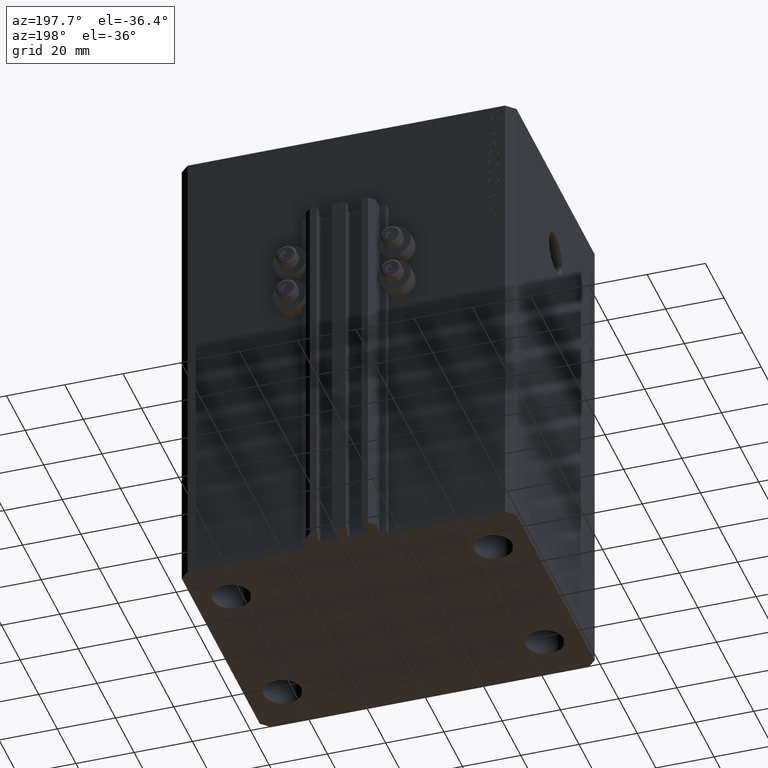
[diagram: clean part render]
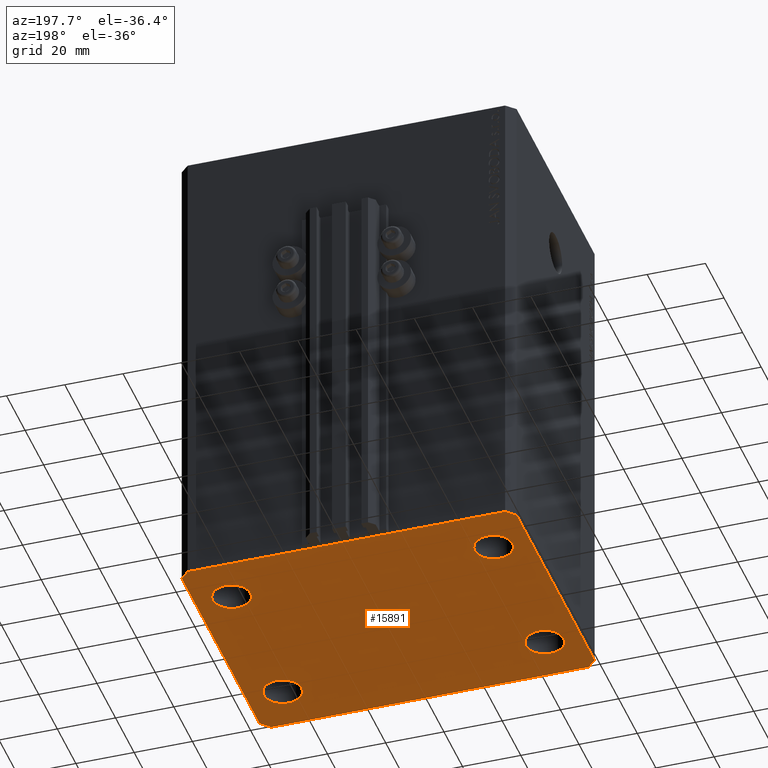
[diagram: same view with one face highlighted and labeled with its STEP entity id]
A machine part, auxiliary view. The second image highlights one B-rep face of the part: STEP entity #15891.
In plain terms, the highlighted planar face has unit normal (0, 0, 1).
Its self-contained STEP definition (entity closure, byte-faithful):
#275 = CIRCLE ( 'NONE', #10191, 6.499999999999999112 ) ;
#929 = AXIS2_PLACEMENT_3D ( 'NONE', #12589, #12356, #27138 ) ;
#1574 = EDGE_CURVE ( 'NONE', #22722, #23841, #24273, .T. ) ;
#2596 = LINE ( 'NONE', #13081, #14529 ) ;
#2732 = VERTEX_POINT ( 'NONE', #6991 ) ;
#3004 = VECTOR ( 'NONE', #13040, 1000.000000000000000 ) ;
#3193 = CARTESIAN_POINT ( 'NONE',  ( 51.49999999999998579, -27.50000000000000355, -165.0000000000000000 ) ) ;
#3483 = VECTOR ( 'NONE', #29317, 1000.000000000000000 ) ;
#3511 = VERTEX_POINT ( 'NONE', #18417 ) ;
#4333 = VECTOR ( 'NONE', #30252, 1000.000000000000000 ) ;
#5034 = CIRCLE ( 'NONE', #44697, 6.499999999999999112 ) ;
#5706 = ORIENTED_EDGE ( 'NONE', *, *, #35976, .F. ) ;
#6229 = EDGE_LOOP ( 'NONE', ( #38562, #44757 ) ) ;
#6282 = EDGE_CURVE ( 'NONE', #20835, #32832, #45773, .T. ) ;
#6991 = CARTESIAN_POINT ( 'NONE',  ( -38.50000000000000000, 27.49999999999999645, -165.0000000000000000 ) ) ;
#7043 = CARTESIAN_POINT ( 'NONE',  ( 44.99999999999998579, -27.50000000000000355, -165.0000000000000000 ) ) ;
#7903 = DIRECTION ( 'NONE',  ( -0.000000000000000000, -0.000000000000000000, -1.000000000000000000 ) ) ;
#8103 = ORIENTED_EDGE ( 'NONE', *, *, #23167, .F. ) ;
#8281 = EDGE_CURVE ( 'NONE', #12023, #3511, #28850, .T. ) ;
#8323 = DIRECTION ( 'NONE',  ( 0.000000000000000000, 0.000000000000000000, 1.000000000000000000 ) ) ;
#8711 = AXIS2_PLACEMENT_3D ( 'NONE', #40316, #8323, #22622 ) ;
#8719 = ORIENTED_EDGE ( 'NONE', *, *, #22955, .F. ) ;
#9440 = EDGE_CURVE ( 'NONE', #37510, #13290, #13076, .T. ) ;
#9654 = CIRCLE ( 'NONE', #15743, 6.499999999999999112 ) ;
#9962 = DIRECTION ( 'NONE',  ( 1.000000000000000000, 0.000000000000000000, 0.000000000000000000 ) ) ;
#10191 = AXIS2_PLACEMENT_3D ( 'NONE', #40382, #7903, #18152 ) ;
#10604 = ORIENTED_EDGE ( 'NONE', *, *, #24945, .F. ) ;
#11190 = FACE_BOUND ( 'NONE', #26619, .T. ) ;
#11804 = EDGE_CURVE ( 'NONE', #12732, #27411, #38777, .T. ) ;
#12023 = VERTEX_POINT ( 'NONE', #36361 ) ;
#12030 = VERTEX_POINT ( 'NONE', #47127 ) ;
#12356 = DIRECTION ( 'NONE',  ( -0.000000000000000000, -0.000000000000000000, -1.000000000000000000 ) ) ;
#12404 = CARTESIAN_POINT ( 'NONE',  ( 54.50000000000000711, -44.99999999999998579, -165.0000000000000000 ) ) ;
#12589 = CARTESIAN_POINT ( 'NONE',  ( -44.99999999999998579, -27.50000000000000355, -165.0000000000000000 ) ) ;
#12732 = VERTEX_POINT ( 'NONE', #36024 ) ;
#13040 = DIRECTION ( 'NONE',  ( 1.000000000000000000, 1.273191542001326317E-16, 0.000000000000000000 ) ) ;
#13076 = LINE ( 'NONE', #13780, #34739 ) ;
#13081 = CARTESIAN_POINT ( 'NONE',  ( 57.50000000000055422, 41.99999999999997868, -165.0000000000000000 ) ) ;
#13290 = VERTEX_POINT ( 'NONE', #25554 ) ;
#13414 = ORIENTED_EDGE ( 'NONE', *, *, #28284, .F. ) ;
#13576 = AXIS2_PLACEMENT_3D ( 'NONE', #37620, #38317, #34258 ) ;
#13695 = VECTOR ( 'NONE', #23371, 1000.000000000000000 ) ;
#13780 = CARTESIAN_POINT ( 'NONE',  ( 54.50000000000059686, 45.00000000000002842, -165.0000000000000000 ) ) ;
#14290 = CARTESIAN_POINT ( 'NONE',  ( 51.50000000000000000, 27.49999999999999289, -165.0000000000000000 ) ) ;
#14529 = VECTOR ( 'NONE', #41996, 1000.000000000000000 ) ;
#14685 = ORIENTED_EDGE ( 'NONE', *, *, #38821, .F. ) ;
#14961 = LINE ( 'NONE', #18078, #42575 ) ;
#15222 = PLANE ( 'NONE',  #8711 ) ;
#15366 = ORIENTED_EDGE ( 'NONE', *, *, #21694, .F. ) ;
#15406 = ORIENTED_EDGE ( 'NONE', *, *, #8281, .F. ) ;
#15730 = LINE ( 'NONE', #37477, #23027 ) ;
#15743 = AXIS2_PLACEMENT_3D ( 'NONE', #44250, #41139, #29653 ) ;
#15891 = ADVANCED_FACE ( 'NONE', ( #37443, #33615, #18808, #11190, #36721 ), #15222, .F. ) ;
#16357 = CIRCLE ( 'NONE', #17899, 6.499999999999999112 ) ;
#16575 = ORIENTED_EDGE ( 'NONE', *, *, #6282, .F. ) ;
#17103 = CARTESIAN_POINT ( 'NONE',  ( -45.00000000000000000, 27.49999999999999645, -165.0000000000000000 ) ) ;
#17163 = AXIS2_PLACEMENT_3D ( 'NONE', #17103, #28082, #9962 ) ;
#17899 = AXIS2_PLACEMENT_3D ( 'NONE', #21578, #39982, #39280 ) ;
#18078 = CARTESIAN_POINT ( 'NONE',  ( -57.50000000000000711, -42.00000000000000711, -165.0000000000000000 ) ) ;
#18152 = DIRECTION ( 'NONE',  ( 1.000000000000000000, 0.000000000000000000, 0.000000000000000000 ) ) ;
#18412 = EDGE_CURVE ( 'NONE', #18453, #35807, #9654, .T. ) ;
#18417 = CARTESIAN_POINT ( 'NONE',  ( -57.50000000000000711, -42.00000000000000711, -165.0000000000000000 ) ) ;
#18442 = CIRCLE ( 'NONE', #929, 6.499999999999999112 ) ;
#18453 = VERTEX_POINT ( 'NONE', #37318 ) ;
#18808 = FACE_BOUND ( 'NONE', #6229, .T. ) ;
#20518 = ORIENTED_EDGE ( 'NONE', *, *, #42763, .F. ) ;
#20835 = VERTEX_POINT ( 'NONE', #42433 ) ;
#21050 = DIRECTION ( 'NONE',  ( -0.000000000000000000, -0.000000000000000000, -1.000000000000000000 ) ) ;
#21537 = EDGE_LOOP ( 'NONE', ( #14685, #44310 ) ) ;
#21578 = CARTESIAN_POINT ( 'NONE',  ( 45.00000000000000000, 27.49999999999999289, -165.0000000000000000 ) ) ;
#21694 = EDGE_CURVE ( 'NONE', #12030, #2732, #30119, .T. ) ;
#22622 = DIRECTION ( 'NONE',  ( 1.000000000000000000, 0.000000000000000000, -0.000000000000000000 ) ) ;
#22722 = VERTEX_POINT ( 'NONE', #14290 ) ;
#22955 = EDGE_CURVE ( 'NONE', #36558, #43758, #5034, .T. ) ;
#23027 = VECTOR ( 'NONE', #44175, 1000.000000000000000 ) ;
#23167 = EDGE_CURVE ( 'NONE', #43758, #36558, #28644, .T. ) ;
#23371 = DIRECTION ( 'NONE',  ( 0.7071067811865483499, 0.7071067811865466846, 0.000000000000000000 ) ) ;
#23841 = VERTEX_POINT ( 'NONE', #41757 ) ;
#24273 = CIRCLE ( 'NONE', #13576, 6.499999999999999112 ) ;
#24945 = EDGE_CURVE ( 'NONE', #3511, #20835, #14961, .T. ) ;
#25554 = CARTESIAN_POINT ( 'NONE',  ( -54.49999999999999289, 45.00000000000000000, -165.0000000000000000 ) ) ;
#26619 = EDGE_LOOP ( 'NONE', ( #20518, #15366 ) ) ;
#26657 = CARTESIAN_POINT ( 'NONE',  ( 54.50000000000000711, -44.99999999999998579, -165.0000000000000000 ) ) ;
#27112 = AXIS2_PLACEMENT_3D ( 'NONE', #28916, #21050, #39691 ) ;
#27115 = CARTESIAN_POINT ( 'NONE',  ( -54.50000000000000711, -45.00000000000000000, -165.0000000000000000 ) ) ;
#27138 = DIRECTION ( 'NONE',  ( 1.000000000000000000, 0.000000000000000000, 0.000000000000000000 ) ) ;
#27411 = VERTEX_POINT ( 'NONE', #42769 ) ;
#27460 = CARTESIAN_POINT ( 'NONE',  ( -38.49999999999998579, -27.50000000000000355, -165.0000000000000000 ) ) ;
#28082 = DIRECTION ( 'NONE',  ( -0.000000000000000000, -0.000000000000000000, -1.000000000000000000 ) ) ;
#28094 = ORIENTED_EDGE ( 'NONE', *, *, #11804, .F. ) ;
#28284 = EDGE_CURVE ( 'NONE', #32832, #12732, #45363, .T. ) ;
#28644 = CIRCLE ( 'NONE', #27112, 6.499999999999999112 ) ;
#28850 = LINE ( 'NONE', #36505, #3483 ) ;
#28916 = CARTESIAN_POINT ( 'NONE',  ( 44.99999999999998579, -27.50000000000000355, -165.0000000000000000 ) ) ;
#29317 = DIRECTION ( 'NONE',  ( -2.478176394252581141E-16, -1.000000000000000000, 0.000000000000000000 ) ) ;
#29653 = DIRECTION ( 'NONE',  ( 1.000000000000000000, 0.000000000000000000, 0.000000000000000000 ) ) ;
#30119 = CIRCLE ( 'NONE', #17163, 6.499999999999999112 ) ;
#30252 = DIRECTION ( 'NONE',  ( 6.443258625056715108E-15, 1.000000000000000000, 0.000000000000000000 ) ) ;
#31583 = CARTESIAN_POINT ( 'NONE',  ( 57.50000000000000711, -41.99999999999998579, -165.0000000000000000 ) ) ;
#31796 = EDGE_CURVE ( 'NONE', #27411, #37510, #2596, .T. ) ;
#32832 = VERTEX_POINT ( 'NONE', #26657 ) ;
#33615 = FACE_BOUND ( 'NONE', #37518, .T. ) ;
#34258 = DIRECTION ( 'NONE',  ( 1.000000000000000000, 0.000000000000000000, 0.000000000000000000 ) ) ;
#34739 = VECTOR ( 'NONE', #41991, 1000.000000000000000 ) ;
#35807 = VERTEX_POINT ( 'NONE', #27460 ) ;
#35976 = EDGE_CURVE ( 'NONE', #13290, #12023, #15730, .T. ) ;
#36024 = CARTESIAN_POINT ( 'NONE',  ( 57.50000000000000711, -41.99999999999998579, -165.0000000000000000 ) ) ;
#36152 = DIRECTION ( 'NONE',  ( -0.000000000000000000, -0.000000000000000000, -1.000000000000000000 ) ) ;
#36361 = CARTESIAN_POINT ( 'NONE',  ( -57.49999999999998579, 42.00000000000000711, -165.0000000000000000 ) ) ;
#36505 = CARTESIAN_POINT ( 'NONE',  ( -57.49999999999998579, 42.00000000000000711, -165.0000000000000000 ) ) ;
#36558 = VERTEX_POINT ( 'NONE', #3193 ) ;
#36721 = FACE_OUTER_BOUND ( 'NONE', #39007, .T. ) ;
#37278 = CARTESIAN_POINT ( 'NONE',  ( 38.49999999999998579, -27.50000000000000355, -165.0000000000000000 ) ) ;
#37318 = CARTESIAN_POINT ( 'NONE',  ( -51.49999999999998579, -27.50000000000000355, -165.0000000000000000 ) ) ;
#37443 = FACE_BOUND ( 'NONE', #21537, .T. ) ;
#37477 = CARTESIAN_POINT ( 'NONE',  ( -54.49999999999999289, 45.00000000000000000, -165.0000000000000000 ) ) ;
#37496 = CARTESIAN_POINT ( 'NONE',  ( 54.50000000000059686, 45.00000000000002842, -165.0000000000000000 ) ) ;
#37510 = VERTEX_POINT ( 'NONE', #37496 ) ;
#37518 = EDGE_LOOP ( 'NONE', ( #8719, #8103 ) ) ;
#37620 = CARTESIAN_POINT ( 'NONE',  ( 45.00000000000000000, 27.49999999999999289, -165.0000000000000000 ) ) ;
#38317 = DIRECTION ( 'NONE',  ( -0.000000000000000000, -0.000000000000000000, -1.000000000000000000 ) ) ;
#38562 = ORIENTED_EDGE ( 'NONE', *, *, #1574, .F. ) ;
#38777 = LINE ( 'NONE', #31583, #4333 ) ;
#38821 = EDGE_CURVE ( 'NONE', #35807, #18453, #18442, .T. ) ;
#39007 = EDGE_LOOP ( 'NONE', ( #42065, #43799, #28094, #13414, #16575, #10604, #15406, #5706 ) ) ;
#39280 = DIRECTION ( 'NONE',  ( 1.000000000000000000, 0.000000000000000000, 0.000000000000000000 ) ) ;
#39691 = DIRECTION ( 'NONE',  ( 1.000000000000000000, 0.000000000000000000, 0.000000000000000000 ) ) ;
#39828 = DIRECTION ( 'NONE',  ( 0.7071067811865491270, -0.7071067811865459074, 0.000000000000000000 ) ) ;
#39982 = DIRECTION ( 'NONE',  ( -0.000000000000000000, -0.000000000000000000, -1.000000000000000000 ) ) ;
#40316 = CARTESIAN_POINT ( 'NONE',  ( 0.000000000000000000, 0.000000000000000000, -165.0000000000000000 ) ) ;
#40382 = CARTESIAN_POINT ( 'NONE',  ( -45.00000000000000000, 27.49999999999999645, -165.0000000000000000 ) ) ;
#40460 = DIRECTION ( 'NONE',  ( 1.000000000000000000, 0.000000000000000000, 0.000000000000000000 ) ) ;
#41139 = DIRECTION ( 'NONE',  ( -0.000000000000000000, -0.000000000000000000, -1.000000000000000000 ) ) ;
#41757 = CARTESIAN_POINT ( 'NONE',  ( 38.50000000000000000, 27.49999999999999289, -165.0000000000000000 ) ) ;
#41991 = DIRECTION ( 'NONE',  ( -1.000000000000000000, -2.546383084002638829E-16, 0.000000000000000000 ) ) ;
#41996 = DIRECTION ( 'NONE',  ( -0.7071067811865369146, 0.7071067811865581199, 0.000000000000000000 ) ) ;
#42065 = ORIENTED_EDGE ( 'NONE', *, *, #9440, .F. ) ;
#42433 = CARTESIAN_POINT ( 'NONE',  ( -54.50000000000000711, -45.00000000000000000, -165.0000000000000000 ) ) ;
#42575 = VECTOR ( 'NONE', #39828, 1000.000000000000114 ) ;
#42763 = EDGE_CURVE ( 'NONE', #2732, #12030, #275, .T. ) ;
#42769 = CARTESIAN_POINT ( 'NONE',  ( 57.50000000000055422, 41.99999999999997868, -165.0000000000000000 ) ) ;
#43758 = VERTEX_POINT ( 'NONE', #37278 ) ;
#43799 = ORIENTED_EDGE ( 'NONE', *, *, #31796, .F. ) ;
#44175 = DIRECTION ( 'NONE',  ( -0.7071067811865483499, -0.7071067811865466846, 0.000000000000000000 ) ) ;
#44250 = CARTESIAN_POINT ( 'NONE',  ( -44.99999999999998579, -27.50000000000000355, -165.0000000000000000 ) ) ;
#44310 = ORIENTED_EDGE ( 'NONE', *, *, #18412, .F. ) ;
#44697 = AXIS2_PLACEMENT_3D ( 'NONE', #7043, #36152, #40460 ) ;
#44757 = ORIENTED_EDGE ( 'NONE', *, *, #46258, .F. ) ;
#45363 = LINE ( 'NONE', #12404, #13695 ) ;
#45773 = LINE ( 'NONE', #27115, #3004 ) ;
#46258 = EDGE_CURVE ( 'NONE', #23841, #22722, #16357, .T. ) ;
#47127 = CARTESIAN_POINT ( 'NONE',  ( -51.50000000000000000, 27.49999999999999645, -165.0000000000000000 ) ) ;